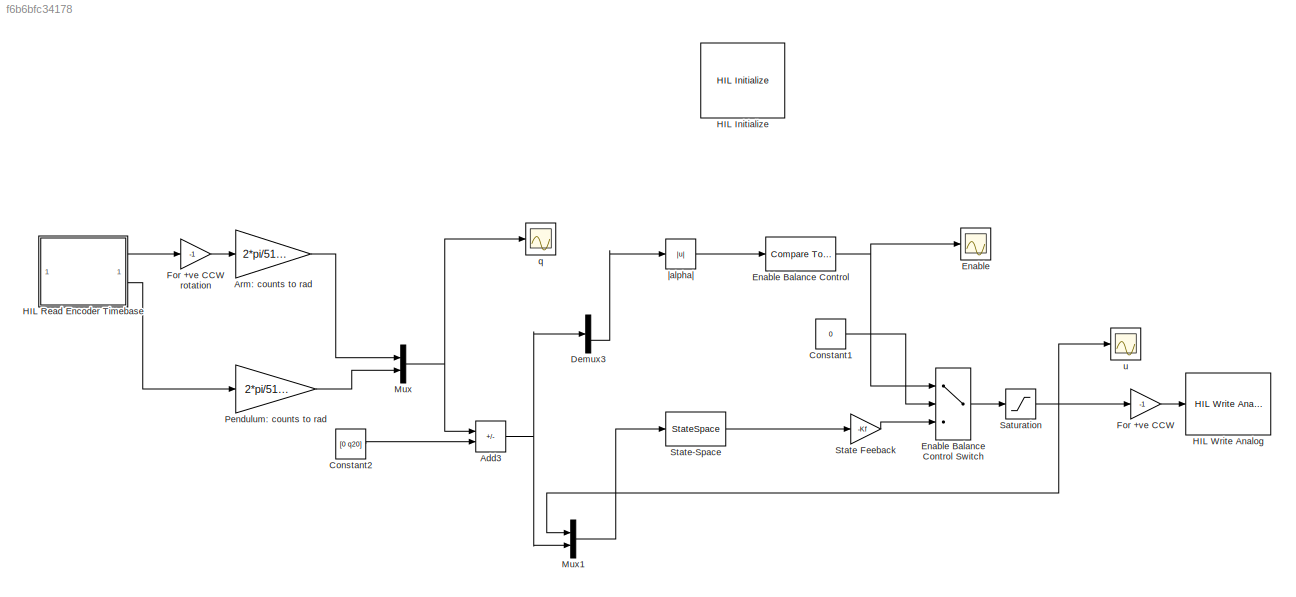
MODEL slx_f6b6bfc34178
KIND model
CONFIG AbsTol = auto
CONFIG EnableMultiTasking = on
CONFIG FixedStep = 0.001
CONFIG MaxStep = auto
CONFIG MinStep = auto
CONFIG RelTol = 1e-3
CONFIG SampleTimeConstraint = Unconstrained
CONFIG SolverName = ode4
CONFIG StartTime = 0.0
CONFIG StopTime = inf
BLOCK [Sum] Add3
  IconShape = rectangular
  Inputs = +-
BLOCK [Gain] Arm: counts to rad
  Gain = 2*pi/512/4
BLOCK [Constant] Constant1
  Value = 0
BLOCK [Constant] Constant2
  Value = [0  q20]
BLOCK [Demux] Demux3
  Outputs = 2
BLOCK [Scope] Enable
  Floating = off
  NameLocation = top
  NumInputPorts = 1
  ScopeSpecificationString = Simulink.scopes.TimeScopeBlockCfg('CurrentConfiguration', extmgr.ConfigurationSet(extmgr.Configuration('Core','General UI',true),extmgr.Configuration('Core','Source UI',true),extmgr.Configuration('Sources','WiredSimulink',true,'DataLoggingVariableName','um1','DataLoggingMaxPoints','20000','DataLoggingSaveFormat','Array'),extmgr.Configuration('Visuals','Time Domain',true,'SerializedDisplays',{struc...<+1503ch>
BLOCK [Reference] Enable Balance Control  REF=simulink/Logic and Bit
Operations/Compare
To Constant
  SourceBlock = simulink/Logic and Bit\nOperations/Compare\nTo Constant
  SourceType = Compare To Constant
BLOCK [MultiPortSwitch] Enable Balance Control Switch
  DataPortOrder = Zero-based contiguous
  InputSameDT = off
  Inputs = 2
  SaturateOnIntegerOverflow = off
  zeroidx = on
BLOCK [Gain] For +ve CCW
  Gain = -1
BLOCK [Gain] For +ve CCW rotation
  Gain = -1
BLOCK [Reference] HIL Initialize  REF=quarc_library/Data Acquisition/Generic/Configuration/HIL Initialize
  AttributesFormatString = %<object_name> (%<board_type>-%<board_number>)
  SourceBlock = quarc_library/Data Acquisition/Generic/Configuration/HIL Initialize
  SourceProductName = QUARC Targets
  SourceType = HIL Initialize
  UserDataPersistent = on
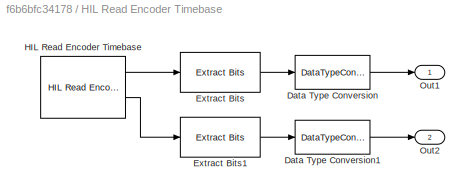
BLOCK [SubSystem] HIL Read Encoder Timebase
  AttributesFormatString = %<Tag>
  Description = Qube-Servo 3 encoder glitch workaround
  Tag = (HIL-1)
BLOCK [DataTypeConversion] HIL Read Encoder Timebase/Data Type Conversion
  RndMeth = Floor
  SaturateOnIntegerOverflow = off
BLOCK [DataTypeConversion] HIL Read Encoder Timebase/Data Type Conversion1
  RndMeth = Floor
  SaturateOnIntegerOverflow = off
BLOCK [Reference] HIL Read Encoder Timebase/Extract Bits  REF=simulink/Logic and Bit
Operations/Extract Bits
  SourceBlock = simulink/Logic and Bit\nOperations/Extract Bits
  SourceType = Extract Bits
BLOCK [Reference] HIL Read Encoder Timebase/Extract Bits1  REF=simulink/Logic and Bit
Operations/Extract Bits
  SourceBlock = simulink/Logic and Bit\nOperations/Extract Bits
  SourceType = Extract Bits
BLOCK [Reference] HIL Read Encoder Timebase/HIL Read Encoder Timebase  REF=quarc_library/Data Acquisition/Generic/Timebases/HIL Read Encoder
Timebase
  AttributesFormatString = (%<object_name>)
  SourceBlock = quarc_library/Data Acquisition/Generic/Timebases/HIL Read Encoder\nTimebase
  SourceProductName = QUARC Targets
  SourceType = HIL Read Encoder Timebase
  UserDataPersistent = on
BLOCK [Outport] HIL Read Encoder Timebase/Out1
BLOCK [Outport] HIL Read Encoder Timebase/Out2
  Port = 2
BLOCK [Reference] HIL Write Analog  REF=quarc_library/Data Acquisition/Generic/Immediate I//O/HIL Write Analog
  AttributesFormatString = (%<object_name>)
  SourceBlock = quarc_library/Data Acquisition/Generic/Immediate I//O/HIL Write Analog
  SourceProductName = QUARC Targets
  SourceType = HIL Write Analog
  UserDataPersistent = on
BLOCK [Mux] Mux
  DisplayOption = bar
  Inputs = 2
BLOCK [Mux] Mux1
  DisplayOption = bar
  Inputs = 2
BLOCK [Gain] Pendulum: counts to rad
  Gain = 2*pi/512/4
BLOCK [Saturate] Saturation
  LowerLimit = -5
  UpperLimit = 5
BLOCK [Gain] State Feeback
  Gain = -Kf
  Multiplication = Matrix(K*u)
BLOCK [StateSpace] State-Space
  A = A_observer
  B = [B L]
  C = eye(4)
  D = zeros(4,3)
  InitialCondition = 0
BLOCK [Scope] q
  Floating = off
  NameLocation = top
  NumInputPorts = 1
  ScopeSpecificationString = Simulink.scopes.TimeScopeBlockCfg('CurrentConfiguration', extmgr.ConfigurationSet(extmgr.Configuration('Core','General UI',true),extmgr.Configuration('Core','Source UI',true),extmgr.Configuration('Sources','WiredSimulink',true,'DataLoggingVariableName','qm_actual','DataLoggingMaxPoints','20000','DataLoggingSaveFormat','StructureWithTime','DataLogging',true),extmgr.Configuration('Visuals','Time Dom...<+1933ch>
BLOCK [Scope] u
  Floating = off
  NameLocation = top
  NumInputPorts = 1
  ScopeSpecificationString = Simulink.scopes.TimeScopeBlockCfg('CurrentConfiguration', extmgr.ConfigurationSet(extmgr.Configuration('Core','General UI',true),extmgr.Configuration('Core','Source UI',true),extmgr.Configuration('Sources','WiredSimulink',true,'DataLoggingVariableName','um','DataLoggingMaxPoints','20000','DataLoggingSaveFormat','Array','DataLogging',true),extmgr.Configuration('Visuals','Time Domain',true,'Serializ...<+1541ch>
BLOCK [Abs] |alpha|
  SaturateOnIntegerOverflow = off
NET Add3:1 -> Demux3:1, Mux1:2
LINE Arm: counts to rad:1 -> Mux:1
LINE Constant1:1 -> Enable Balance Control Switch:2
LINE Constant2:1 -> Add3:2
LINE Demux3:2 -> |alpha|:1
LINE Enable Balance Control Switch:1 -> Saturation:1
NET Enable Balance Control:1 -> Enable Balance Control Switch:1, Enable:1
LINE For +ve CCW rotation:1 -> Arm: counts to rad:1
LINE For +ve CCW:1 -> HIL Write Analog:1
LINE HIL Read Encoder Timebase/Data Type Conversion1:1 -> HIL Read Encoder Timebase/Out2:1
LINE HIL Read Encoder Timebase/Data Type Conversion:1 -> HIL Read Encoder Timebase/Out1:1
LINE HIL Read Encoder Timebase/Extract Bits1:1 -> HIL Read Encoder Timebase/Data Type Conversion1:1
LINE HIL Read Encoder Timebase/Extract Bits:1 -> HIL Read Encoder Timebase/Data Type Conversion:1
LINE HIL Read Encoder Timebase/HIL Read Encoder Timebase:1 -> HIL Read Encoder Timebase/Extract Bits:1
LINE HIL Read Encoder Timebase/HIL Read Encoder Timebase:2 -> HIL Read Encoder Timebase/Extract Bits1:1
LINE HIL Read Encoder Timebase:1 -> For +ve CCW rotation:1
LINE HIL Read Encoder Timebase:2 -> Pendulum: counts to rad:1
LINE Mux1:1 -> State-Space:1
NET Mux:1 -> Add3:1, q:1
LINE Pendulum: counts to rad:1 -> Mux:2
NET Saturation:1 -> For +ve CCW:1, Mux1:1, u:1
LINE State Feeback:1 -> Enable Balance Control Switch:3
LINE State-Space:1 -> State Feeback:1
LINE |alpha|:1 -> Enable Balance Control:1
note: NET lines group one-source signal fan-out (src -> all destinations, sorted); 1:1 wires keep LINE
